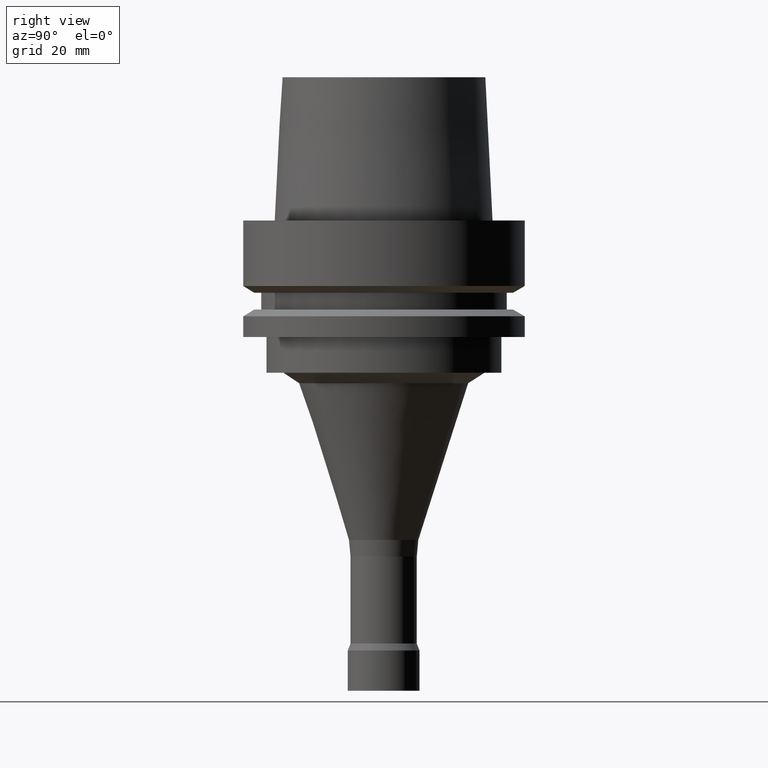
[diagram: clean part render]
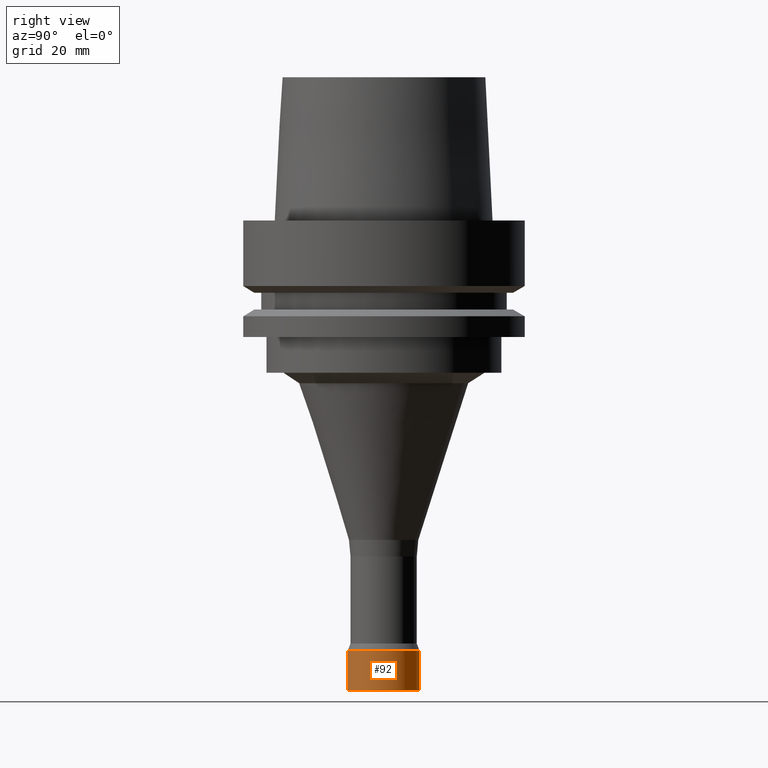
[diagram: same view with one face highlighted and labeled with its STEP entity id]
A machine part, right view. The second image highlights one B-rep face of the part: STEP entity #92.
In plain terms, the highlighted cylindrical surface (bore or boss wall) has radius 8 mm, axis along (-0, -0, 1).
Its self-contained STEP definition (entity closure, byte-faithful):
#92=ADVANCED_FACE('',(#146,#147),#148,.T.);
#146=FACE_BOUND('',#204,.T.);
#147=FACE_BOUND('',#205,.T.);
#148=CYLINDRICAL_SURFACE('',#206,8.0);
#204=EDGE_LOOP('',(#296));
#205=EDGE_LOOP('',(#297));
#206=AXIS2_PLACEMENT_3D('',#298,#299,#300);
#296=ORIENTED_EDGE('',*,*,#328,.F.);
#297=ORIENTED_EDGE('',*,*,#327,.T.);
#298=CARTESIAN_POINT('',(6.15385016571545E-015,1.23077003314309E-014,-100.5));
#299=DIRECTION('',(-6.12323399573677E-017,-1.22464679914735E-016,1.0));
#300=DIRECTION('',(-1.23259516440783E-032,1.0,1.22464679914735E-016));
#327=EDGE_CURVE('',#363,#363,#364,.T.);
#328=EDGE_CURVE('',#365,#365,#366,.T.);
#363=VERTEX_POINT('',#401);
#364=CIRCLE('',#402,8.0);
#365=VERTEX_POINT('',#403);
#366=CIRCLE('',#404,8.0);
#401=CARTESIAN_POINT('',(5.8783046359073E-015,8.00000000000001,-96.0));
#402=AXIS2_PLACEMENT_3D('',#456,#457,#458);
#403=CARTESIAN_POINT('',(6.4293956955236E-015,8.00000000000001,-105.0));
#404=AXIS2_PLACEMENT_3D('',#459,#460,#461);
#456=CARTESIAN_POINT('',(5.8783046359073E-015,1.17566092718146E-014,-96.0));
#457=DIRECTION('',(6.12323399573677E-017,1.22464679914735E-016,-1.0));
#458=DIRECTION('',(-1.23259516440783E-032,1.0,1.22464679914735E-016));
#459=CARTESIAN_POINT('',(6.4293956955236E-015,1.28587913910472E-014,-105.0));
#460=DIRECTION('',(6.12323399573677E-017,1.22464679914735E-016,-1.0));
#461=DIRECTION('',(-1.23259516440783E-032,1.0,1.22464679914735E-016));